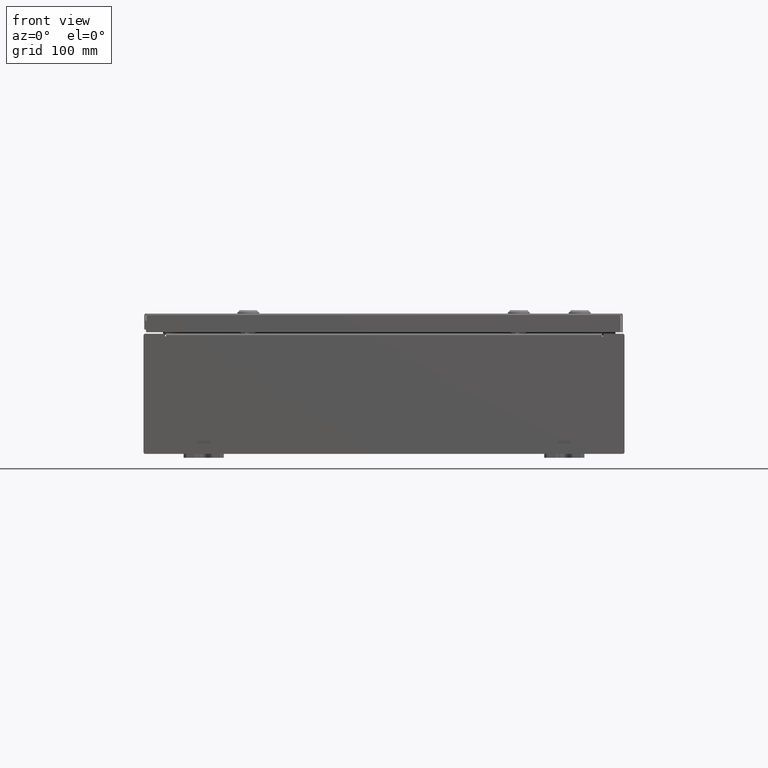
[diagram: clean part render]
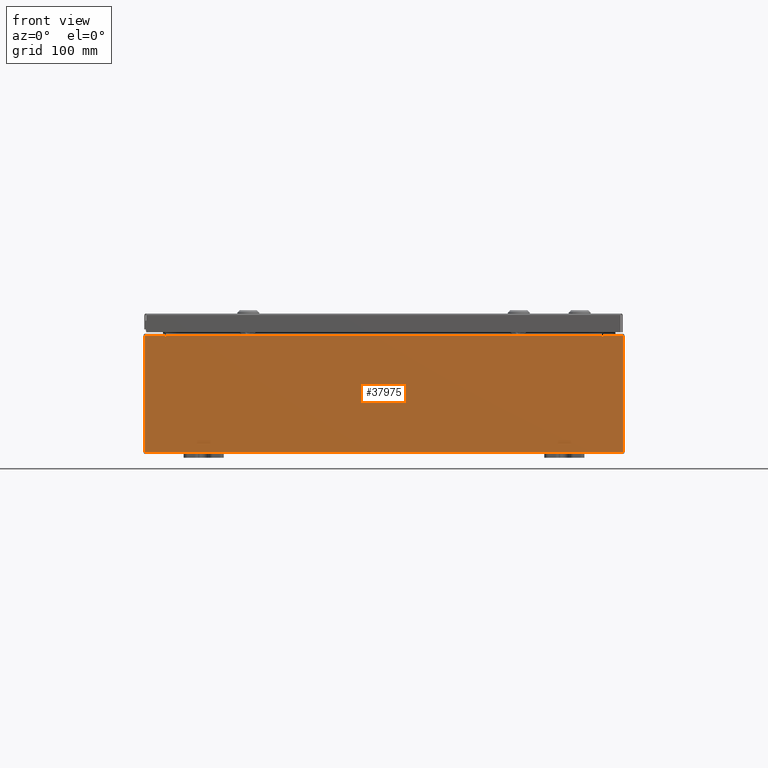
[diagram: same view with one face highlighted and labeled with its STEP entity id]
A machine part, front view. The second image highlights one B-rep face of the part: STEP entity #37975.
In plain terms, the highlighted planar face has unit normal (-0, 1, -0).
Its self-contained STEP definition (entity closure, byte-faithful):
#202 = CARTESIAN_POINT ( 'NONE',  ( 0.0000000000000000000, 0.0000000000000000000, 0.0000000000000000000 ) ) ;
#444 = ORIENTED_EDGE ( 'NONE', *, *, #4638, .T. ) ;
#1424 = AXIS2_PLACEMENT_3D ( 'NONE', #202, #15221, #49498 ) ;
#1951 = DIRECTION ( 'NONE',  ( 0.0000000000000000000, 0.0000000000000000000, -1.000000000000000000 ) ) ;
#2524 = DIRECTION ( 'NONE',  ( -1.000000000000000000, -0.0000000000000000000, -0.0000000000000000000 ) ) ;
#4638 = EDGE_CURVE ( 'NONE', #36559, #10151, #18165, .T. ) ;
#5067 = VECTOR ( 'NONE', #42106, 39.37007874015748100 ) ;
#5305 = VERTEX_POINT ( 'NONE', #32837 ) ;
#6778 = VECTOR ( 'NONE', #41914, 39.37007874015748100 ) ;
#6969 = ORIENTED_EDGE ( 'NONE', *, *, #14252, .T. ) ;
#7460 = CARTESIAN_POINT ( 'NONE',  ( 11.92530000000000000, 0.0000000000000000000, 2.925300000000000500 ) ) ;
#7481 = CARTESIAN_POINT ( 'NONE',  ( -10.88720000000000200, 1.024442997624098700E-016, 2.912300000000000600 ) ) ;
#7616 = CARTESIAN_POINT ( 'NONE',  ( -10.92454999999999800, 0.0000000000000000000, 2.925300000000000500 ) ) ;
#7744 = ORIENTED_EDGE ( 'NONE', *, *, #47986, .T. ) ;
#7900 = CARTESIAN_POINT ( 'NONE',  ( 11.92530000000000000, 0.0000000000000000000, 2.925300000000000500 ) ) ;
#8111 = DIRECTION ( 'NONE',  ( 1.000000000000000000, 0.0000000000000000000, 0.0000000000000000000 ) ) ;
#9733 = LINE ( 'NONE', #51856, #34264 ) ;
#10151 = VERTEX_POINT ( 'NONE', #33401 ) ;
#10254 = PLANE ( 'NONE',  #1424 ) ;
#10656 = EDGE_CURVE ( 'NONE', #57437, #39318, #40735, .T. ) ;
#10793 = DIRECTION ( 'NONE',  ( 1.000000000000000000, 0.0000000000000000000, 0.0000000000000000000 ) ) ;
#12579 = CARTESIAN_POINT ( 'NONE',  ( 10.92454999999987600, -0.0000000000000000000, -4.741880436811833600E-013 ) ) ;
#13098 = DIRECTION ( 'NONE',  ( -0.0000000000000000000, 1.000000000000000000, -0.0000000000000000000 ) ) ;
#13463 = CARTESIAN_POINT ( 'NONE',  ( -10.92454999999999800, 0.0000000000000000000, 2.874950000000000600 ) ) ;
#13827 = EDGE_LOOP ( 'NONE', ( #28317, #17324, #48114, #61019, #27167, #49859, #33422, #7744, #63392, #6969, #444, #36798 ) ) ;
#14252 = EDGE_CURVE ( 'NONE', #14943, #36559, #35185, .T. ) ;
#14874 = EDGE_CURVE ( 'NONE', #5305, #41437, #57416, .T. ) ;
#14943 = VERTEX_POINT ( 'NONE', #37407 ) ;
#15221 = DIRECTION ( 'NONE',  ( 0.0000000000000000000, -1.000000000000000000, 0.0000000000000000000 ) ) ;
#15781 = EDGE_CURVE ( 'NONE', #56295, #63330, #45874, .T. ) ;
#17324 = ORIENTED_EDGE ( 'NONE', *, *, #61916, .F. ) ;
#18165 = LINE ( 'NONE', #61620, #5067 ) ;
#18423 = CARTESIAN_POINT ( 'NONE',  ( -10.88720000000000000, -0.0000000000000000000, 0.0000000000000000000 ) ) ;
#19490 = VERTEX_POINT ( 'NONE', #7460 ) ;
#20447 = VERTEX_POINT ( 'NONE', #41854 ) ;
#20733 = LINE ( 'NONE', #40140, #30658 ) ;
#21886 = CARTESIAN_POINT ( 'NONE',  ( 10.88720000000000200, 0.0000000000000000000, 2.912300000000000600 ) ) ;
#21987 = CARTESIAN_POINT ( 'NONE',  ( 10.88720000000000200, 0.0000000000000000000, 2.874950000000000600 ) ) ;
#22224 = VECTOR ( 'NONE', #2524, 39.37007874015748100 ) ;
#22611 = CARTESIAN_POINT ( 'NONE',  ( 10.88720000000000200, 0.0000000000000000000, 0.0000000000000000000 ) ) ;
#23160 = DIRECTION ( 'NONE',  ( 0.0000000000000000000, 0.0000000000000000000, -1.000000000000000000 ) ) ;
#23342 = EDGE_CURVE ( 'NONE', #47955, #20447, #43047, .T. ) ;
#25372 = EDGE_CURVE ( 'NONE', #10151, #39318, #20733, .T. ) ;
#25506 = CARTESIAN_POINT ( 'NONE',  ( -11.92530000000000000, 0.0000000000000000000, -2.925299999999999600 ) ) ;
#26021 = CARTESIAN_POINT ( 'NONE',  ( 10.92455000000000000, 0.0000000000000000000, 2.874950000000000600 ) ) ;
#27167 = ORIENTED_EDGE ( 'NONE', *, *, #15781, .F. ) ;
#27245 = CARTESIAN_POINT ( 'NONE',  ( -10.88720000000000000, 1.024442997624098700E-016, 2.912300000000000600 ) ) ;
#27536 = DIRECTION ( 'NONE',  ( 0.0000000000000000000, 0.0000000000000000000, 1.000000000000000000 ) ) ;
#27760 = VECTOR ( 'NONE', #62911, 39.37007874015748100 ) ;
#28317 = ORIENTED_EDGE ( 'NONE', *, *, #10656, .F. ) ;
#28435 = CARTESIAN_POINT ( 'NONE',  ( -10.92454999999999800, -0.0000000000000000000, 0.0000000000000000000 ) ) ;
#30658 = VECTOR ( 'NONE', #10793, 39.37007874015748100 ) ;
#31331 = DIRECTION ( 'NONE',  ( -0.0000000000000000000, 1.000000000000000000, -0.0000000000000000000 ) ) ;
#32034 = EDGE_CURVE ( 'NONE', #19490, #14943, #62442, .T. ) ;
#32803 = VECTOR ( 'NONE', #27536, 39.37007874015748100 ) ;
#32837 = CARTESIAN_POINT ( 'NONE',  ( 10.92455000000000000, 0.0000000000000000000, 2.925300000000000500 ) ) ;
#32924 = CIRCLE ( 'NONE', #62449, 0.01867499999999949400 ) ;
#33401 = CARTESIAN_POINT ( 'NONE',  ( -11.92530000000000000, 0.0000000000000000000, 2.925300000000000500 ) ) ;
#33422 = ORIENTED_EDGE ( 'NONE', *, *, #14874, .F. ) ;
#34264 = VECTOR ( 'NONE', #56779, 39.37007874015748100 ) ;
#35185 = LINE ( 'NONE', #61244, #22224 ) ;
#36559 = VERTEX_POINT ( 'NONE', #25506 ) ;
#36798 = ORIENTED_EDGE ( 'NONE', *, *, #25372, .T. ) ;
#37136 = LINE ( 'NONE', #7481, #40197 ) ;
#37407 = CARTESIAN_POINT ( 'NONE',  ( 11.92530000000000000, 0.0000000000000000000, -2.925299999999999600 ) ) ;
#37975 = ADVANCED_FACE ( 'NONE', ( #45308 ), #10254, .F. ) ;
#39318 = VERTEX_POINT ( 'NONE', #7616 ) ;
#40140 = CARTESIAN_POINT ( 'NONE',  ( -11.92530000000000000, 0.0000000000000000000, 2.925300000000000500 ) ) ;
#40197 = VECTOR ( 'NONE', #8111, 39.37007874015748100 ) ;
#40735 = LINE ( 'NONE', #28435, #27760 ) ;
#41437 = VERTEX_POINT ( 'NONE', #26021 ) ;
#41854 = CARTESIAN_POINT ( 'NONE',  ( -10.88720000000000000, -0.0000000000000000000, 2.874950000000000600 ) ) ;
#41914 = DIRECTION ( 'NONE',  ( -4.340572780400004900E-014, 0.0000000000000000000, -1.000000000000000000 ) ) ;
#42106 = DIRECTION ( 'NONE',  ( -0.0000000000000000000, -0.0000000000000000000, 1.000000000000000000 ) ) ;
#42334 = CIRCLE ( 'NONE', #42439, 0.01867499999999949400 ) ;
#42422 = CARTESIAN_POINT ( 'NONE',  ( -10.90587500000000000, 0.0000000000000000000, 2.874950000000000600 ) ) ;
#42439 = AXIS2_PLACEMENT_3D ( 'NONE', #42422, #13098, #47394 ) ;
#43047 = LINE ( 'NONE', #18423, #44594 ) ;
#44594 = VECTOR ( 'NONE', #23160, 39.37007874015748100 ) ;
#45064 = EDGE_CURVE ( 'NONE', #41437, #56295, #32924, .T. ) ;
#45308 = FACE_OUTER_BOUND ( 'NONE', #13827, .T. ) ;
#45874 = LINE ( 'NONE', #22611, #32803 ) ;
#47394 = DIRECTION ( 'NONE',  ( 0.0000000000000000000, 0.0000000000000000000, -1.000000000000000000 ) ) ;
#47955 = VERTEX_POINT ( 'NONE', #27245 ) ;
#47986 = EDGE_CURVE ( 'NONE', #5305, #19490, #9733, .T. ) ;
#48114 = ORIENTED_EDGE ( 'NONE', *, *, #23342, .F. ) ;
#49388 = VECTOR ( 'NONE', #56998, 39.37007874015748100 ) ;
#49498 = DIRECTION ( 'NONE',  ( 0.0000000000000000000, -0.0000000000000000000, -1.000000000000000000 ) ) ;
#49859 = ORIENTED_EDGE ( 'NONE', *, *, #45064, .F. ) ;
#51856 = CARTESIAN_POINT ( 'NONE',  ( -11.92530000000000000, 0.0000000000000000000, 2.925300000000000500 ) ) ;
#56295 = VERTEX_POINT ( 'NONE', #21987 ) ;
#56779 = DIRECTION ( 'NONE',  ( 1.000000000000000000, 0.0000000000000000000, 0.0000000000000000000 ) ) ;
#56998 = DIRECTION ( 'NONE',  ( 0.0000000000000000000, 0.0000000000000000000, -1.000000000000000000 ) ) ;
#57416 = LINE ( 'NONE', #12579, #6778 ) ;
#57437 = VERTEX_POINT ( 'NONE', #13463 ) ;
#59588 = EDGE_CURVE ( 'NONE', #47955, #63330, #37136, .T. ) ;
#60653 = CARTESIAN_POINT ( 'NONE',  ( 10.90587500000000200, 0.0000000000000000000, 2.874950000000000600 ) ) ;
#61019 = ORIENTED_EDGE ( 'NONE', *, *, #59588, .T. ) ;
#61244 = CARTESIAN_POINT ( 'NONE',  ( -11.92530000000000000, 0.0000000000000000000, -2.925299999999999600 ) ) ;
#61620 = CARTESIAN_POINT ( 'NONE',  ( -11.92530000000000000, 0.0000000000000000000, 2.925300000000000500 ) ) ;
#61916 = EDGE_CURVE ( 'NONE', #20447, #57437, #42334, .T. ) ;
#62442 = LINE ( 'NONE', #7900, #49388 ) ;
#62449 = AXIS2_PLACEMENT_3D ( 'NONE', #60653, #31331, #1951 ) ;
#62911 = DIRECTION ( 'NONE',  ( 0.0000000000000000000, 0.0000000000000000000, 1.000000000000000000 ) ) ;
#63330 = VERTEX_POINT ( 'NONE', #21886 ) ;
#63392 = ORIENTED_EDGE ( 'NONE', *, *, #32034, .T. ) ;